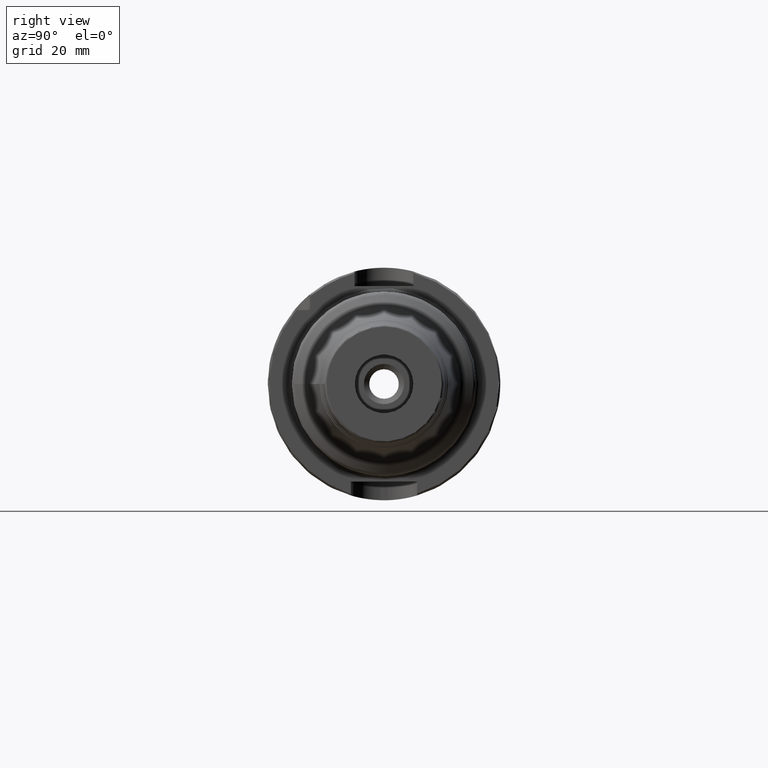
[diagram: clean part render]
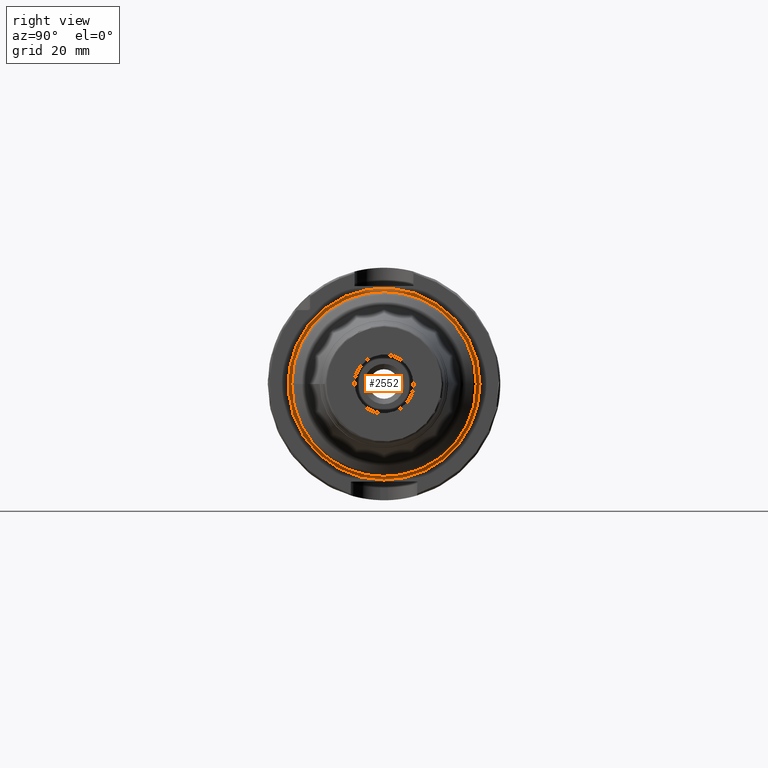
[diagram: same view with one face highlighted and labeled with its STEP entity id]
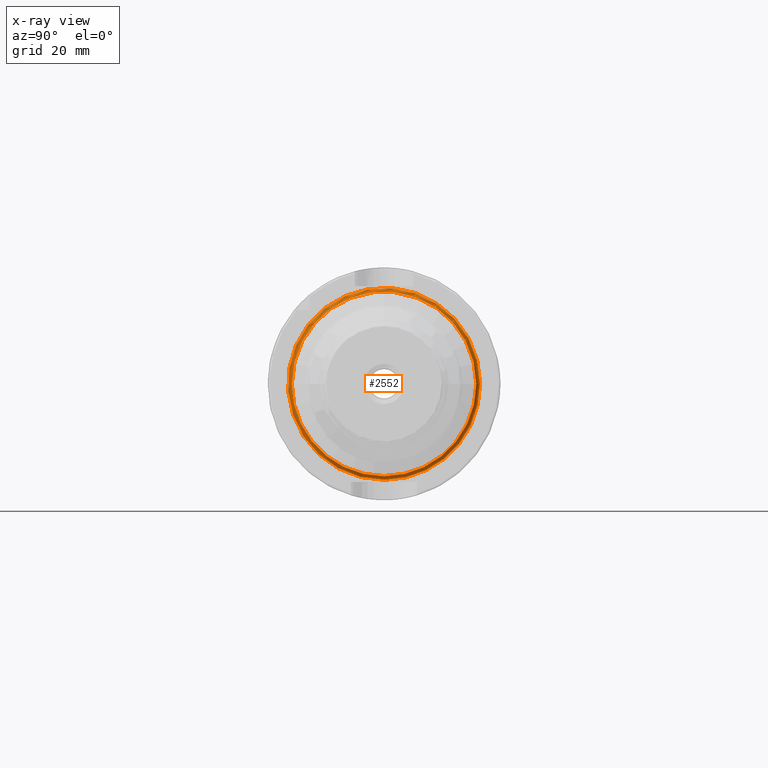
[diagram: x-ray of the same camera — body ghosted, the highlighted face saturated]
A machine part, right view. The second image highlights one B-rep face of the part: STEP entity #2552.
The next image is the same camera in x-ray: the body ghosted, the highlighted face saturated — about 4% of this face is hidden behind the body in this view.
In plain terms, the highlighted toroidal blend (fillet) surface has major radius 26 mm and minor (blend) radius 1 mm.
Its self-contained STEP definition (entity closure, byte-faithful):
#161=TOROIDAL_SURFACE('',#2795,26.,1.);
#243=FACE_OUTER_BOUND('',#379,.T.);
#379=EDGE_LOOP('',(#1860,#1861,#1862,#1863,#1864,#1865,#1866));
#756=CIRCLE('',#2713,25.);
#757=CIRCLE('',#2714,25.);
#758=CIRCLE('',#2715,25.);
#820=CIRCLE('',#2796,1.);
#821=CIRCLE('',#2797,26.);
#822=CIRCLE('',#2798,26.);
#976=VERTEX_POINT('',#3949);
#977=VERTEX_POINT('',#3951);
#978=VERTEX_POINT('',#3953);
#1031=VERTEX_POINT('',#4096);
#1032=VERTEX_POINT('',#4098);
#1275=EDGE_CURVE('',#977,#976,#756,.T.);
#1276=EDGE_CURVE('',#978,#977,#757,.T.);
#1277=EDGE_CURVE('',#976,#978,#758,.T.);
#1347=EDGE_CURVE('',#977,#1031,#820,.T.);
#1348=EDGE_CURVE('',#1031,#1032,#821,.T.);
#1349=EDGE_CURVE('',#1032,#1031,#822,.T.);
#1860=ORIENTED_EDGE('',*,*,#1276,.T.);
#1861=ORIENTED_EDGE('',*,*,#1347,.T.);
#1862=ORIENTED_EDGE('',*,*,#1348,.T.);
#1863=ORIENTED_EDGE('',*,*,#1349,.T.);
#1864=ORIENTED_EDGE('',*,*,#1347,.F.);
#1865=ORIENTED_EDGE('',*,*,#1275,.T.);
#1866=ORIENTED_EDGE('',*,*,#1277,.T.);
#2552=ADVANCED_FACE('',(#243),#161,.F.);
#2713=AXIS2_PLACEMENT_3D('',#3952,#3116,#3117);
#2714=AXIS2_PLACEMENT_3D('',#3954,#3118,#3119);
#2715=AXIS2_PLACEMENT_3D('',#3955,#3120,#3121);
#2795=AXIS2_PLACEMENT_3D('',#4095,#3288,#3289);
#2796=AXIS2_PLACEMENT_3D('',#4097,#3290,#3291);
#2797=AXIS2_PLACEMENT_3D('',#4099,#3292,#3293);
#2798=AXIS2_PLACEMENT_3D('',#4100,#3294,#3295);
#3116=DIRECTION('center_axis',(-1.,0.,0.));
#3117=DIRECTION('ref_axis',(0.,-1.,-1.22464679914735E-16));
#3118=DIRECTION('center_axis',(-1.,0.,0.));
#3119=DIRECTION('ref_axis',(0.,-1.,-1.22464679914735E-16));
#3120=DIRECTION('center_axis',(-1.,0.,0.));
#3121=DIRECTION('ref_axis',(0.,-1.,-1.22464679914735E-16));
#3288=DIRECTION('center_axis',(-1.,0.,0.));
#3289=DIRECTION('ref_axis',(0.,0.,1.));
#3290=DIRECTION('center_axis',(0.,-1.,1.22464679914735E-16));
#3291=DIRECTION('ref_axis',(0.,-1.22464679914735E-16,-1.));
#3292=DIRECTION('center_axis',(1.,0.,0.));
#3293=DIRECTION('ref_axis',(0.,-1.,-1.22464679914735E-16));
#3294=DIRECTION('center_axis',(1.,0.,0.));
#3295=DIRECTION('ref_axis',(0.,-1.,-1.22464679914735E-16));
#3949=CARTESIAN_POINT('',(27.,-25.,-3.06161699786838E-15));
#3951=CARTESIAN_POINT('',(27.,-3.06161699786838E-15,-25.));
#3952=CARTESIAN_POINT('Origin',(27.,0.,0.));
#3953=CARTESIAN_POINT('',(27.,25.,0.));
#3954=CARTESIAN_POINT('Origin',(27.,0.,0.));
#3955=CARTESIAN_POINT('Origin',(27.,0.,0.));
#4095=CARTESIAN_POINT('Origin',(27.,0.,0.));
#4096=CARTESIAN_POINT('',(26.,-3.18408167778312E-15,-26.));
#4097=CARTESIAN_POINT('Origin',(27.,-3.18408167778312E-15,-26.));
#4098=CARTESIAN_POINT('',(26.,26.,6.36816335556624E-15));
#4099=CARTESIAN_POINT('Origin',(26.,0.,0.));
#4100=CARTESIAN_POINT('Origin',(26.,0.,0.));